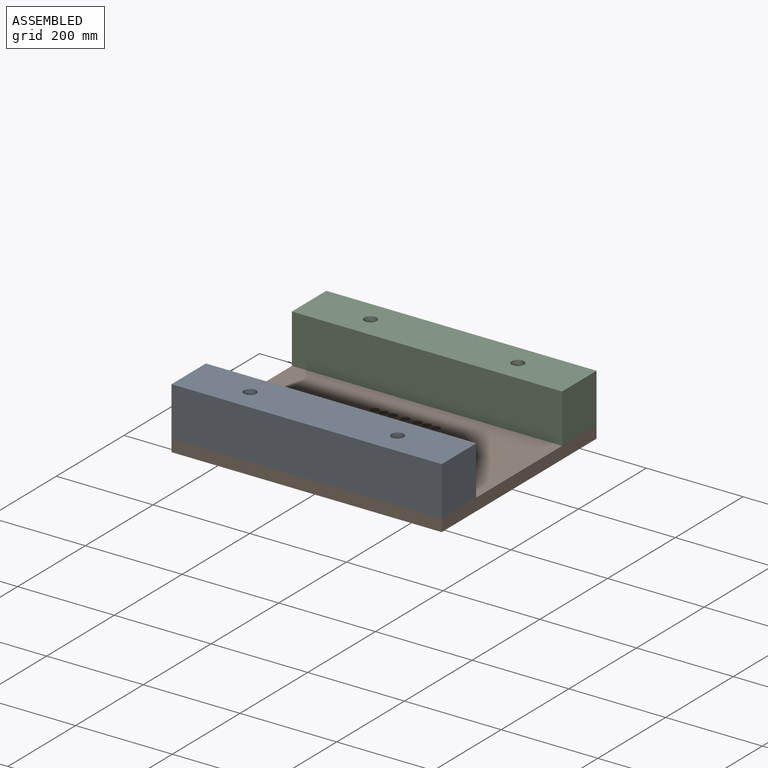
[diagram: assembled view]
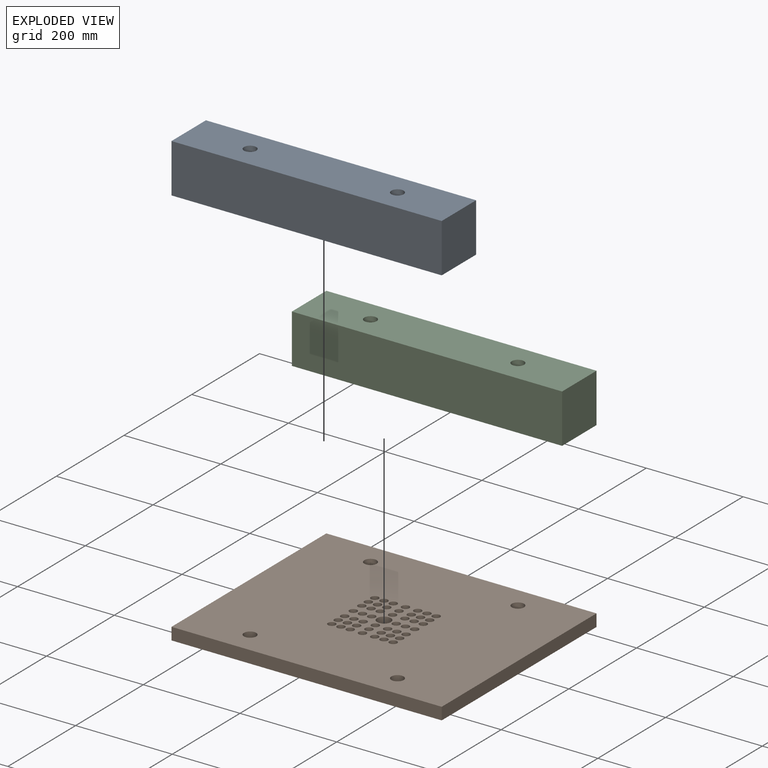
[diagram: exploded view]
GUIDED TOUR — MATED ASSEMBLY (Onshape document a8e37d6f4fe03221f33d71a7, AutoMate assembly a8e37d6f4fe03221f33d71a7_795fa14e1879638ab82243c3_b719b1e57178a6c754d3c16a_default)

This assembly has 3 components, labeled P0..P2 below (a component is one placed occurrence of a part; the same part can appear more than once), held together by 2 mates. A mate is a constraint between two components; its type names the relative motion it leaves free:
  PLANAR — leaves sliding in the plane through the listed point (normal = the listed direction) and rotation about that normal free.
Axis/direction vectors are unit vectors and 'through' points are millimeter coordinates, both in the assembly's world frame.

MATES
  1. PLANAR "Planar 2": P0 <-> P1, direction (0.000, 0.000, -1.000) through (30.35, -145.01, -91.39) mm
  2. PLANAR "Planar 1": P2 <-> P1, direction (0.000, 0.000, -1.000) through (30.35, 159.79, -91.39) mm

ASSEMBLY ORDER
  1. P2 — the base component [order verified]
  2. P0 [order verified]
  3. P1 [order verified]
Order-tag legend:
  [order verified] — this step's position reverses a verified removal order: the component was checked to insert without passing through the ones already placed.

Of the 3 components, 3 carry the full construction recipe — the FeatureScript program that regenerates the part's solid from scratch; the rest are supplied as boundary geometry only.
Each toured component is shown spotlighted twice — in the assembled view, then in the exploded view, where a leader line traces a displaced component back to its assembled socket (saturated green if recipe-attached, orange if geometry-only; every other component desaturated gray) — followed by its recipe or geometry summary and the mates that hold it.
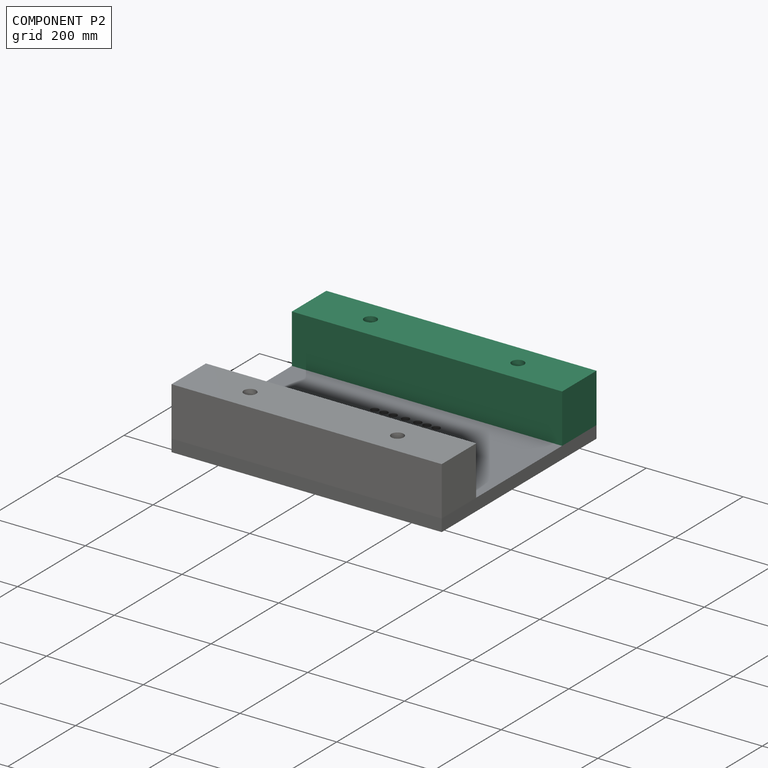
[diagram: component P2 — assembled]
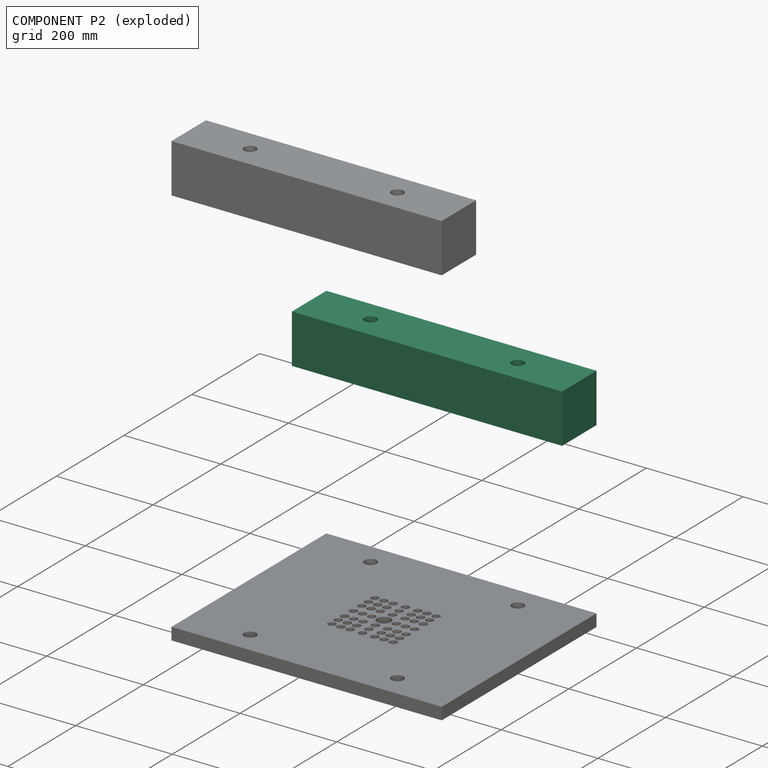
[diagram: component P2 — exploded]
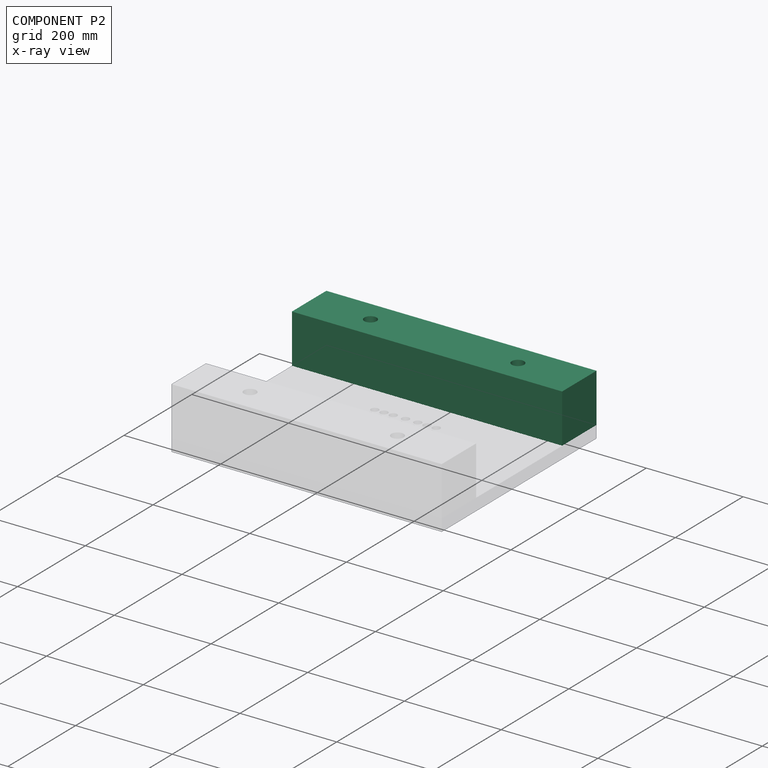
[diagram: component P2 — x-ray view]
COMPONENT P2 — same part as P0 (CADFS 00120802); its construction recipe is shown at P0.
Held by: PLANAR mate "Planar 1" to P1.
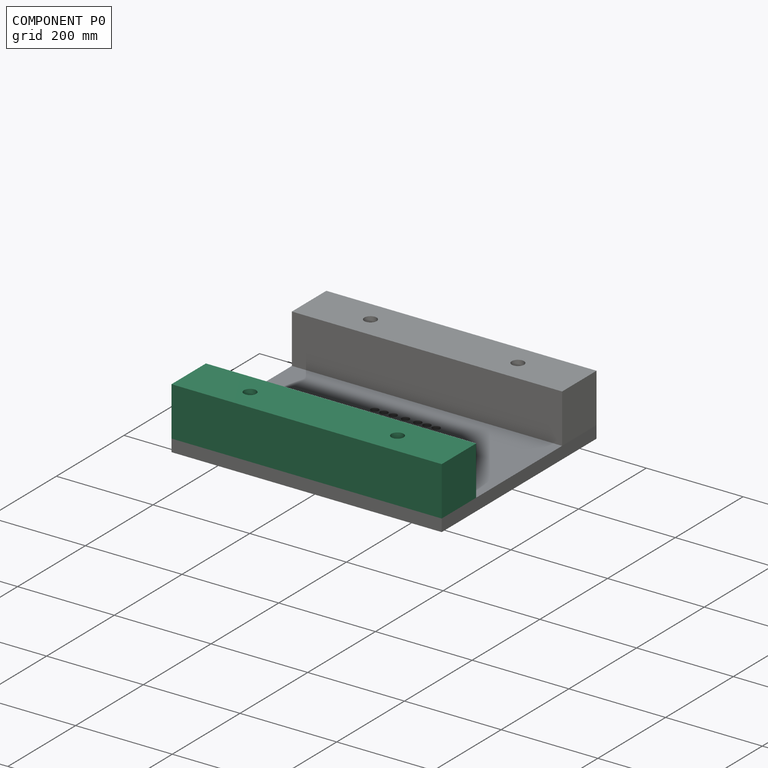
[diagram: component P0 — assembled]
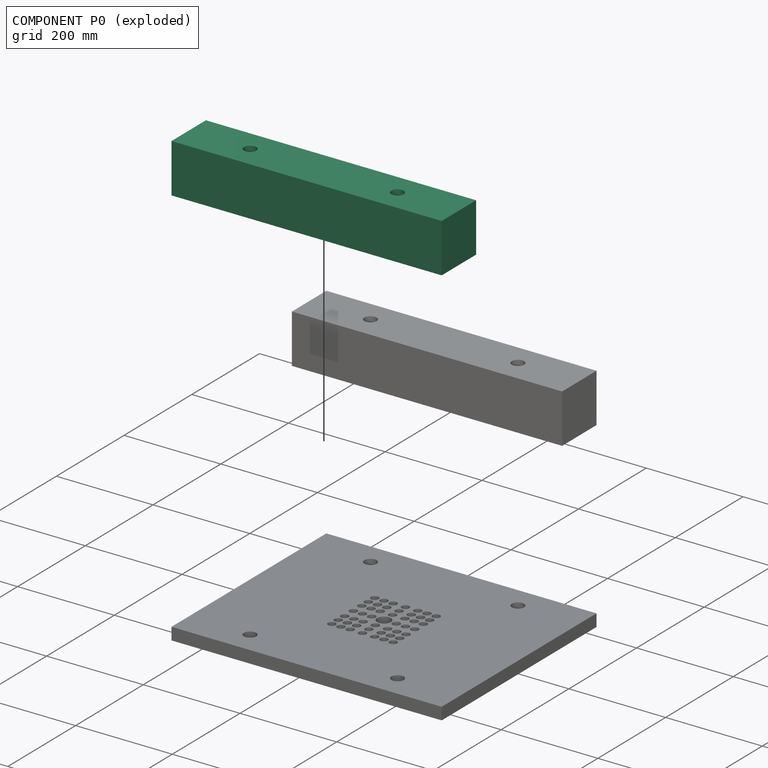
[diagram: component P0 — exploded]
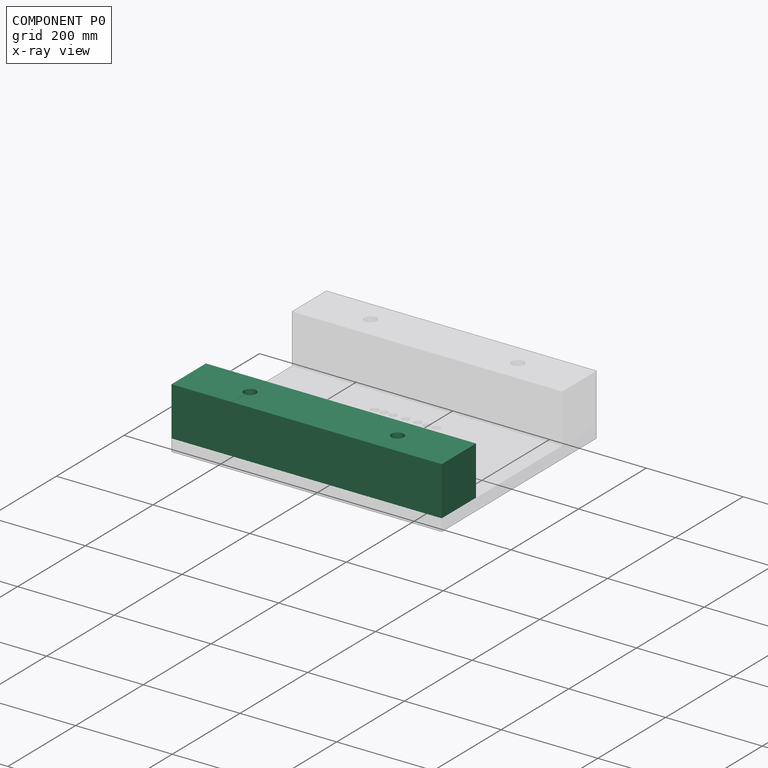
[diagram: component P0 — x-ray view]
COMPONENT P0 — recipe-attached (CADFS 00120802, mesh-verified: the recipe's output STEP matches this component's geometry to below the mesh-comparison resolution (tessellation chordal tolerance ~0.865 mm)).
Held by: PLANAR mate "Planar 2" to P1.
Construction recipe (FeatureScript — the CAD program that rebuilds this solid; sketch coordinates are in the units given by the * unit suffixes, e.g. mm):

FeatureScript 1511;
import(path : "onshape/std/geometry.fs", version : "1511.0");
import(path : "onshape/std/common.fs", version : "1511.0");
const mm = millimeter;
const VERTEX = EntityType.VERTEX;
const EDGE = EntityType.EDGE;
const FACE = EntityType.FACE;
const BODY = EntityType.BODY;
function v(x, y){return vector(x, y);}
function OD(order){return orderDisambiguation(order);}
function OSD(set){return originalSetDisambiguation(set);}
function TD(topology){return topologyDisambiguation(topology);}
function TDD(query){return trueDependencyDisambiguation(query);}
function sQuery(a, b, c) {return sketchEntityQuery(a, b, c);}

annotation { "Feature Type Name" : "Feature", "Feature Type Description" : "" }
export const myFeature = defineFeature(function(context is Context, id is Id, definition is map)
    precondition{}
    {
        {
            var Q0;
            Q0=qCreatedBy(makeId("Top.planeOp"),FACE);
            var sketch = newSketch(context, id + "F0", { "sketchPlane" : qUnion([Q0])});
            skLineSegment(sketch, "E0.bottom", {"start": v(0, 0) * mm, "end": v(558.8, 0) * mm});
            skLineSegment(sketch, "E0.top", {"start": v(0, 101.6) * mm, "end": v(558.8, 101.6) * mm});
            skLineSegment(sketch, "E0.left", {"start": v(0, 0) * mm, "end": v(0, 101.6) * mm});
            skLineSegment(sketch, "E0.right", {"start": v(558.8, 0) * mm, "end": v(558.8, 101.6) * mm});
            skSolve(sketch);
        }
        {
            var Q0;
            Q0 = qSketchRegion(id + "F0", true);
            extrude(context, id + "F1", {"entities" : qUnion([Q0]), "oppositeDirection" : true, "depth" : 101.6 * mm});
        }
        {
            var Q0;
            Q0=makeQuery(id+"F1.opExtrude","CAP_FACE",FACE,{"disambiguationData":[OSD([sQuery(id+"F0.wireOp",EDGE,"E0.bottom"),sQuery(id+"F0.wireOp",EDGE,"E0.top"),sQuery(id+"F0.wireOp",EDGE,"E0.left"),sQuery(id+"F0.wireOp",EDGE,"E0.right")])],"isStart":true});
            var sketch = newSketch(context, id + "F2", { "sketchPlane" : qUnion([Q0])});
            skCircle(sketch, "E1", {"center": v(127, 50.8) * mm, "radius": 12.7 * mm});
            skCircle(sketch, "E2", {"center": v(431.8, 50.8) * mm, "radius": 12.7 * mm});
            skLineSegment(sketch, "E3", {"start": v(114.3, 50.8) * mm, "end": v(0, 50.8) * mm});
            skLineSegment(sketch, "E4", {"start": v(431.8, 50.8) * mm, "end": v(558.8, 50.8) * mm});
            skLineSegment(sketch, "E5", {"start": v(127, 63.5) * mm, "end": v(127, 101.6) * mm});
            skLineSegment(sketch, "E6", {"start": v(127, 38.1) * mm, "end": v(127, 0) * mm});
            skSolve(sketch);
        }
        {
            var Q0;
            Q0 = qSketchRegion(id + "F2", true);
            extrude(context, id + "F3", {"entities" : qUnion([Q0]), "operationType" : NewBodyOperationType.REMOVE, "endBound" : BoundingType.THROUGH_ALL, "oppositeDirection" : true, "depth" : 25.4 * mm});
        }
    });
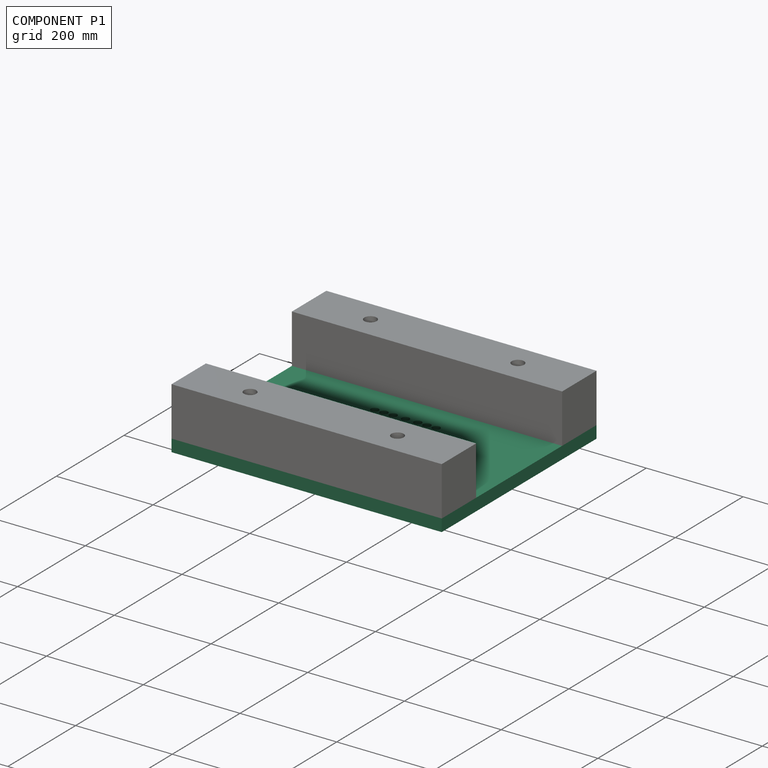
[diagram: component P1 — assembled]
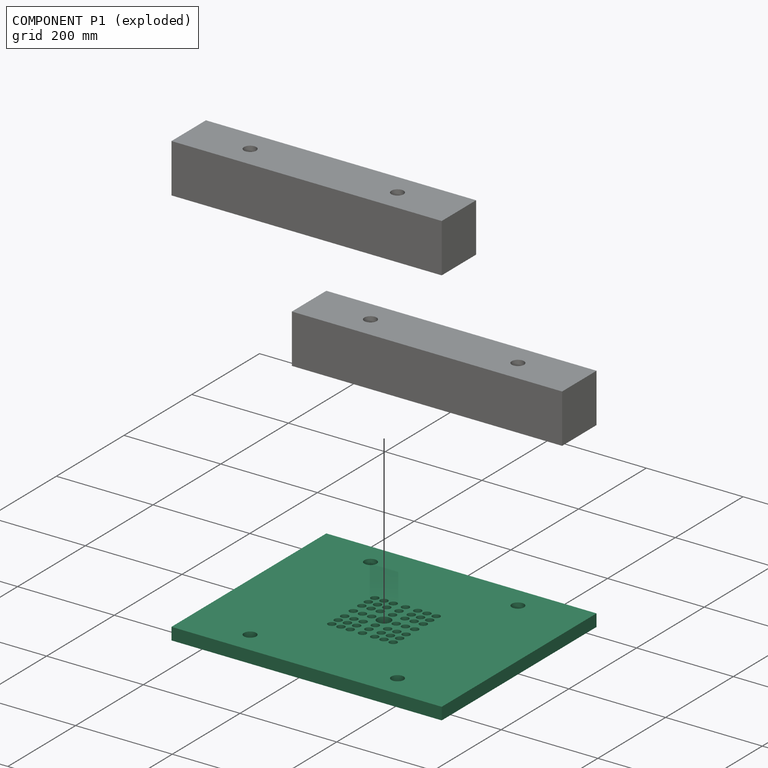
[diagram: component P1 — exploded]
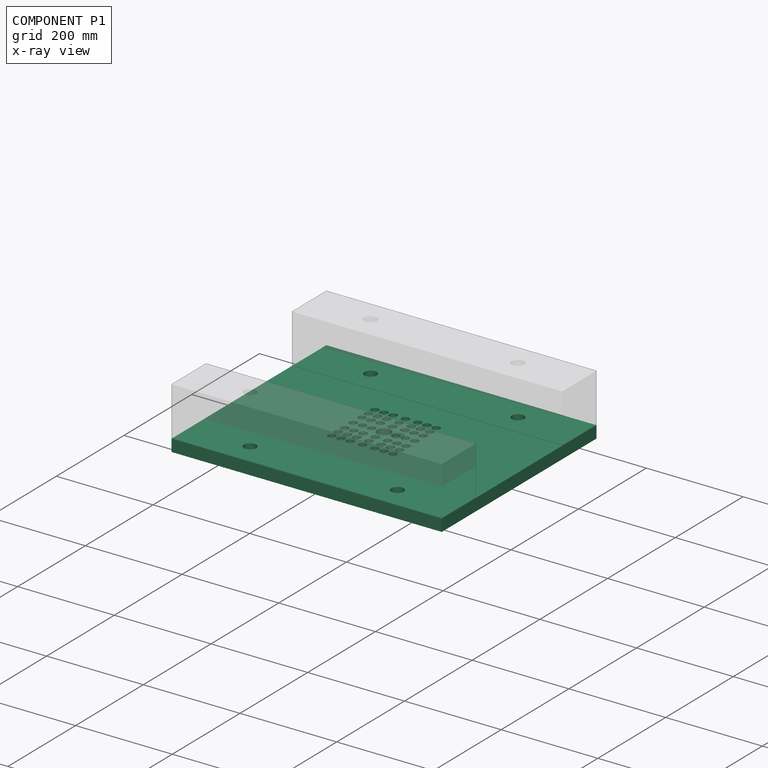
[diagram: component P1 — x-ray view]
COMPONENT P1 — recipe-attached (CADFS 00120801, mesh-verified: the recipe's output STEP matches this component's geometry to below the mesh-comparison resolution (tessellation chordal tolerance ~1.08 mm)).
Held by: PLANAR mate "Planar 2" to P0; PLANAR mate "Planar 1" to P2.
Construction recipe (FeatureScript — the CAD program that rebuilds this solid; sketch coordinates are in the units given by the * unit suffixes, e.g. mm):

FeatureScript 1511;
import(path : "onshape/std/geometry.fs", version : "1511.0");
import(path : "onshape/std/common.fs", version : "1511.0");
const mm = millimeter;
const VERTEX = EntityType.VERTEX;
const EDGE = EntityType.EDGE;
const FACE = EntityType.FACE;
const BODY = EntityType.BODY;
function v(x, y){return vector(x, y);}
function OD(order){return orderDisambiguation(order);}
function OSD(set){return originalSetDisambiguation(set);}
function TD(topology){return topologyDisambiguation(topology);}
function TDD(query){return trueDependencyDisambiguation(query);}
function sQuery(a, b, c) {return sketchEntityQuery(a, b, c);}

annotation { "Feature Type Name" : "Feature", "Feature Type Description" : "" }
export const myFeature = defineFeature(function(context is Context, id is Id, definition is map)
    precondition{}
    {
        {
            var Q0;
            Q0=qCreatedBy(makeId("Top.planeOp"),FACE);
            var sketch = newSketch(context, id + "F0", { "sketchPlane" : qUnion([Q0])});
            skLineSegment(sketch, "E0.bottom", {"start": v(279.4, -228.6) * mm, "end": v(-279.4, -228.6) * mm});
            skLineSegment(sketch, "E0.top", {"start": v(279.4, 228.6) * mm, "end": v(-279.4, 228.6) * mm});
            skLineSegment(sketch, "E0.left", {"start": v(279.4, -228.6) * mm, "end": v(279.4, 228.6) * mm});
            skLineSegment(sketch, "E0.right", {"start": v(-279.4, -228.6) * mm, "end": v(-279.4, 228.6) * mm});
            skPoint(sketch, "E0.middle", {"position": v(0, 0) * mm});
            skSolve(sketch);
        }
        {
            var Q0;
            Q0 = qSketchRegion(id + "F0", true);
            extrude(context, id + "F1", {"entities" : qUnion([Q0]), "oppositeDirection" : true, "depth" : 25.4 * mm});
        }
        {
            var Q0;
            Q0=makeQuery(id+"F1.opExtrude","CAP_FACE",FACE,{"disambiguationData":[OSD([sQuery(id+"F0.wireOp",EDGE,"E0.bottom"),sQuery(id+"F0.wireOp",EDGE,"E0.top"),sQuery(id+"F0.wireOp",EDGE,"E0.left"),sQuery(id+"F0.wireOp",EDGE,"E0.right")])],"isStart":true});
            var sketch = newSketch(context, id + "F2", { "sketchPlane" : qUnion([Q0])});
            skCircle(sketch, "E1", {"center": v(-152.4, -177.8) * mm, "radius": 12.7 * mm});
            skCircle(sketch, "E2", {"center": v(152.4, -177.8) * mm, "radius": 12.7 * mm});
            skCircle(sketch, "E3", {"center": v(-152.4, 177.8) * mm, "radius": 12.7 * mm});
            skCircle(sketch, "E4", {"center": v(152.4, 177.8) * mm, "radius": 12.7 * mm});
            skLineSegment(sketch, "E5", {"start": v(-152.4, -177.8) * mm, "end": v(-279.4, -177.8) * mm});
            skLineSegment(sketch, "E6", {"start": v(152.4, -177.8) * mm, "end": v(279.4, -177.8) * mm});
            skSolve(sketch);
        }
        {
            var Q0;
            Q0 = qSketchRegion(id + "F2", true);
            extrude(context, id + "F3", {"entities" : qUnion([Q0]), "operationType" : NewBodyOperationType.REMOVE, "endBound" : BoundingType.THROUGH_ALL, "oppositeDirection" : true, "depth" : 25.4 * mm});
        }
        {
            var Q0;
            Q0=makeQuery(id+"F1.opExtrude","CAP_FACE",FACE,{"disambiguationData":[OSD([sQuery(id+"F0.wireOp",EDGE,"E0.bottom"),sQuery(id+"F0.wireOp",EDGE,"E0.top"),sQuery(id+"F0.wireOp",EDGE,"E0.left"),sQuery(id+"F0.wireOp",EDGE,"E0.right")])],"isStart":true});
            var sketch = newSketch(context, id + "F4", { "sketchPlane" : qUnion([Q0])});
            skCircle(sketch, "E7", {"center": v(25.4, 63.5) * mm, "radius": 7.94 * mm});
            skCircle(sketch, "E8", {"center": v(25.4, 44.45) * mm, "radius": 7.94 * mm});
            skCircle(sketch, "E9", {"center": v(25.4, 25.4) * mm, "radius": 7.94 * mm});
            skCircle(sketch, "E10", {"center": v(44.45, 63.5) * mm, "radius": 7.94 * mm});
            skCircle(sketch, "E11", {"center": v(63.5, 63.5) * mm, "radius": 7.94 * mm});
            skCircle(sketch, "E12", {"center": v(44.45, 44.45) * mm, "radius": 7.94 * mm});
            skCircle(sketch, "E13", {"center": v(63.5, 44.45) * mm, "radius": 7.94 * mm});
            skCircle(sketch, "E14", {"center": v(44.45, 25.4) * mm, "radius": 7.94 * mm});
            skCircle(sketch, "E15", {"center": v(63.5, 25.4) * mm, "radius": 7.94 * mm});
            skCircle(sketch, "E16", {"center": v(0, 0) * mm, "radius": 14.29 * mm});
            skCircle(sketch, "E17", {"center": v(25.4, 0) * mm, "radius": 7.94 * mm});
            skCircle(sketch, "E18", {"center": v(44.45, 0) * mm, "radius": 7.94 * mm});
            skCircle(sketch, "E19", {"center": v(63.5, 0) * mm, "radius": 7.94 * mm});
            skCircle(sketch, "E20", {"center": v(0, 25.4) * mm, "radius": 7.94 * mm});
            skCircle(sketch, "E21", {"center": v(0, 44.45) * mm, "radius": 7.94 * mm});
            skCircle(sketch, "E22", {"center": v(0, 63.5) * mm, "radius": 7.94 * mm});
            skLineSegment(sketch, "E23", {"start": v(0, 63.5) * mm, "end": v(0, 25.4) * mm});
            skLineSegment(sketch, "E24", {"start": v(25.4, 0) * mm, "end": v(63.5, 0) * mm});
            skCircle(sketch, "E25.MirrorC", {"center": v(-25.4, 44.45) * mm, "radius": 7.94 * mm});
            skCircle(sketch, "E26.MirrorC", {"center": v(-25.4, 63.5) * mm, "radius": 7.94 * mm});
            skCircle(sketch, "E27.MirrorC", {"center": v(-44.45, 63.5) * mm, "radius": 7.94 * mm});
            skCircle(sketch, "E28.MirrorC", {"center": v(-63.5, 63.5) * mm, "radius": 7.94 * mm});
            skCircle(sketch, "E29.MirrorC", {"center": v(-63.5, 44.45) * mm, "radius": 7.94 * mm});
            skCircle(sketch, "E30.MirrorC", {"center": v(-63.5, 25.4) * mm, "radius": 7.94 * mm});
            skCircle(sketch, "E31.MirrorC", {"center": v(-44.45, 25.4) * mm, "radius": 7.94 * mm});
            skCircle(sketch, "E32.MirrorC", {"center": v(-25.4, 25.4) * mm, "radius": 7.94 * mm});
            skCircle(sketch, "E33.MirrorC", {"center": v(-44.45, 44.45) * mm, "radius": 7.94 * mm});
            skLineSegment(sketch, "E34.MirrorCS", {"start": v(0, -63.5) * mm, "end": v(0, -25.4) * mm});
            skCircle(sketch, "E35.MirrorC", {"center": v(-25.4, -25.4) * mm, "radius": 7.94 * mm});
            skCircle(sketch, "E36.MirrorC", {"center": v(-63.5, -44.45) * mm, "radius": 7.94 * mm});
            skCircle(sketch, "E37.MirrorC", {"center": v(-44.45, -63.5) * mm, "radius": 7.94 * mm});
            skCircle(sketch, "E38.MirrorC", {"center": v(-25.4, -63.5) * mm, "radius": 7.94 * mm});
            skCircle(sketch, "E39.MirrorC", {"center": v(-25.4, -44.45) * mm, "radius": 7.94 * mm});
            skCircle(sketch, "E40.MirrorC", {"center": v(-63.5, -63.5) * mm, "radius": 7.94 * mm});
            skCircle(sketch, "E41.MirrorC", {"center": v(-44.45, -25.4) * mm, "radius": 7.94 * mm});
            skCircle(sketch, "E42.MirrorC", {"center": v(0, -25.4) * mm, "radius": 7.94 * mm});
            skCircle(sketch, "E43.MirrorC", {"center": v(0, -44.45) * mm, "radius": 7.94 * mm});
            skCircle(sketch, "E44.MirrorC", {"center": v(0, -63.5) * mm, "radius": 7.94 * mm});
            skCircle(sketch, "E45.MirrorC", {"center": v(25.4, -63.5) * mm, "radius": 7.94 * mm});
            skCircle(sketch, "E46.MirrorC", {"center": v(25.4, -44.45) * mm, "radius": 7.94 * mm});
            skCircle(sketch, "E47.MirrorC", {"center": v(-63.5, -25.4) * mm, "radius": 7.94 * mm});
            skCircle(sketch, "E48.MirrorC", {"center": v(25.4, -25.4) * mm, "radius": 7.94 * mm});
            skCircle(sketch, "E49.MirrorC", {"center": v(44.45, -63.5) * mm, "radius": 7.94 * mm});
            skCircle(sketch, "E50.MirrorC", {"center": v(63.5, -63.5) * mm, "radius": 7.94 * mm});
            skCircle(sketch, "E51.MirrorC", {"center": v(44.45, -44.45) * mm, "radius": 7.94 * mm});
            skCircle(sketch, "E52.MirrorC", {"center": v(63.5, -44.45) * mm, "radius": 7.94 * mm});
            skCircle(sketch, "E53.MirrorC", {"center": v(-44.45, -44.45) * mm, "radius": 7.94 * mm});
            skCircle(sketch, "E54.MirrorC", {"center": v(44.45, -25.4) * mm, "radius": 7.94 * mm});
            skCircle(sketch, "E55.MirrorC", {"center": v(63.5, -25.4) * mm, "radius": 7.94 * mm});
            skCircle(sketch, "E56.MirrorC", {"center": v(-25.4, 0) * mm, "radius": 7.94 * mm});
            skCircle(sketch, "E57.MirrorC", {"center": v(-44.45, 0) * mm, "radius": 7.94 * mm});
            skCircle(sketch, "E58.MirrorC", {"center": v(-63.5, 0) * mm, "radius": 7.94 * mm});
            skSolve(sketch);
        }
        {
            var Q0;
            Q0 = qSketchRegion(id + "F4", true);
            extrude(context, id + "F5", {"entities" : qUnion([Q0]), "operationType" : NewBodyOperationType.REMOVE, "endBound" : BoundingType.THROUGH_ALL, "oppositeDirection" : true, "depth" : 25.4 * mm});
        }
        {
            var Q0;
            Q0=makeQuery(id+"F1.opExtrude","CAP_FACE",FACE,{"disambiguationData":[OSD([sQuery(id+"F0.wireOp",EDGE,"E0.bottom"),sQuery(id+"F0.wireOp",EDGE,"E0.top"),sQuery(id+"F0.wireOp",EDGE,"E0.left"),sQuery(id+"F0.wireOp",EDGE,"E0.right")])],"isStart":true});
            cPlane(context, id + "F6", {"entities" : qUnion([Q0]), "cplaneType" : CPlaneType.OFFSET, "offset" : 12.7 * mm, "oppositeDirection" : true, "width" : 152.4 * mm, "height" : 152.4 * mm});
        }
        {
            var Q0;
            Q0=qCreatedBy(id+"F6.planeOp",FACE);
            var sketch = newSketch(context, id + "F7", { "sketchPlane" : qUnion([Q0])});
            skCircle(sketch, "E59.0", {"center": v(63.5, 63.5) * mm, "radius": 7.94 * mm});
            skCircle(sketch, "E59.1", {"center": v(63.5, 44.45) * mm, "radius": 7.94 * mm});
            skCircle(sketch, "E59.2", {"center": v(44.45, 44.45) * mm, "radius": 7.94 * mm});
            skCircle(sketch, "E59.3", {"center": v(44.45, 25.4) * mm, "radius": 7.94 * mm});
            skCircle(sketch, "E59.4", {"center": v(44.45, 63.5) * mm, "radius": 7.94 * mm});
            skCircle(sketch, "E59.5", {"center": v(25.4, 63.5) * mm, "radius": 7.94 * mm});
            skCircle(sketch, "E59.6", {"center": v(25.4, 44.45) * mm, "radius": 7.94 * mm});
            skCircle(sketch, "E59.7", {"center": v(25.4, 25.4) * mm, "radius": 7.94 * mm});
            skCircle(sketch, "E59.8", {"center": v(63.5, 25.4) * mm, "radius": 7.94 * mm});
            skCircle(sketch, "E59.9", {"center": v(63.5, 0) * mm, "radius": 7.94 * mm});
            skCircle(sketch, "E59.10", {"center": v(44.45, 0) * mm, "radius": 7.94 * mm});
            skCircle(sketch, "E59.11", {"center": v(25.4, 0) * mm, "radius": 7.94 * mm});
            skCircle(sketch, "E59.12", {"center": v(25.4, -25.4) * mm, "radius": 7.94 * mm});
            skCircle(sketch, "E59.13", {"center": v(44.45, -25.4) * mm, "radius": 7.94 * mm});
            skCircle(sketch, "E59.14", {"center": v(63.5, -25.4) * mm, "radius": 7.94 * mm});
            skCircle(sketch, "E59.15", {"center": v(63.5, -44.45) * mm, "radius": 7.94 * mm});
            skCircle(sketch, "E59.16", {"center": v(44.45, -44.45) * mm, "radius": 7.94 * mm});
            skCircle(sketch, "E59.17", {"center": v(25.4, -44.45) * mm, "radius": 7.94 * mm});
            skCircle(sketch, "E59.18", {"center": v(25.4, -63.5) * mm, "radius": 7.94 * mm});
            skCircle(sketch, "E59.19", {"center": v(44.45, -63.5) * mm, "radius": 7.94 * mm});
            skCircle(sketch, "E59.20", {"center": v(63.5, -63.5) * mm, "radius": 7.94 * mm});
            skCircle(sketch, "E59.21", {"center": v(0, -63.5) * mm, "radius": 7.94 * mm});
            skCircle(sketch, "E59.22", {"center": v(0, -44.45) * mm, "radius": 7.94 * mm});
            skCircle(sketch, "E59.23", {"center": v(0, -25.4) * mm, "radius": 7.94 * mm});
            skCircle(sketch, "E59.24", {"center": v(0, 25.4) * mm, "radius": 7.94 * mm});
            skCircle(sketch, "E59.25", {"center": v(0, 44.45) * mm, "radius": 7.94 * mm});
            skCircle(sketch, "E59.26", {"center": v(0, 63.5) * mm, "radius": 7.94 * mm});
            skCircle(sketch, "E59.27", {"center": v(-25.4, 63.5) * mm, "radius": 7.94 * mm});
            skCircle(sketch, "E59.28", {"center": v(-25.4, 44.45) * mm, "radius": 7.94 * mm});
            skCircle(sketch, "E59.29", {"center": v(-25.4, 25.4) * mm, "radius": 7.94 * mm});
            skCircle(sketch, "E59.30", {"center": v(-25.4, 0) * mm, "radius": 7.94 * mm});
            skCircle(sketch, "E59.31", {"center": v(-25.4, -25.4) * mm, "radius": 7.94 * mm});
            skCircle(sketch, "E59.32", {"center": v(-25.4, -44.45) * mm, "radius": 7.94 * mm});
            skCircle(sketch, "E59.33", {"center": v(-25.4, -63.5) * mm, "radius": 7.94 * mm});
            skCircle(sketch, "E59.34", {"center": v(-44.45, -63.5) * mm, "radius": 7.94 * mm});
            skCircle(sketch, "E59.35", {"center": v(-44.45, -44.45) * mm, "radius": 7.94 * mm});
            skCircle(sketch, "E59.36", {"center": v(-44.45, -25.4) * mm, "radius": 7.94 * mm});
            skCircle(sketch, "E59.37", {"center": v(-44.45, 0) * mm, "radius": 7.94 * mm});
            skCircle(sketch, "E59.38", {"center": v(-44.45, 25.4) * mm, "radius": 7.94 * mm});
            skCircle(sketch, "E59.39", {"center": v(-44.45, 44.45) * mm, "radius": 7.94 * mm});
            skCircle(sketch, "E59.40", {"center": v(-44.45, 63.5) * mm, "radius": 7.94 * mm});
            skCircle(sketch, "E59.41", {"center": v(-63.5, 63.5) * mm, "radius": 7.94 * mm});
            skCircle(sketch, "E59.42", {"center": v(-63.5, 44.45) * mm, "radius": 7.94 * mm});
            skCircle(sketch, "E59.43", {"center": v(-63.5, 25.4) * mm, "radius": 7.94 * mm});
            skCircle(sketch, "E59.44", {"center": v(-63.5, 0) * mm, "radius": 7.94 * mm});
            skCircle(sketch, "E59.45", {"center": v(-63.5, -25.4) * mm, "radius": 7.94 * mm});
            skCircle(sketch, "E59.46", {"center": v(-63.5, -44.45) * mm, "radius": 7.94 * mm});
            skCircle(sketch, "E59.47", {"center": v(-63.5, -63.5) * mm, "radius": 7.94 * mm});
            skCircle(sketch, "E60", {"center": v(63.5, 63.5) * mm, "radius": 4.76 * mm});
            skCircle(sketch, "E61", {"center": v(63.5, 44.45) * mm, "radius": 4.76 * mm});
            skCircle(sketch, "E62", {"center": v(63.5, 25.4) * mm, "radius": 4.76 * mm});
            skCircle(sketch, "E63", {"center": v(44.45, 25.4) * mm, "radius": 4.76 * mm});
            skCircle(sketch, "E64", {"center": v(44.45, 63.5) * mm, "radius": 4.76 * mm});
            skCircle(sketch, "E65", {"center": v(44.45, 44.45) * mm, "radius": 4.76 * mm});
            skCircle(sketch, "E66", {"center": v(25.4, 63.5) * mm, "radius": 4.76 * mm});
            skCircle(sketch, "E67", {"center": v(25.4, 44.45) * mm, "radius": 4.76 * mm});
            skCircle(sketch, "E68", {"center": v(25.4, 25.4) * mm, "radius": 4.76 * mm});
            skCircle(sketch, "E69", {"center": v(0, 63.5) * mm, "radius": 4.76 * mm});
            skCircle(sketch, "E70", {"center": v(0, 44.45) * mm, "radius": 4.76 * mm});
            skCircle(sketch, "E71", {"center": v(0, 25.4) * mm, "radius": 4.76 * mm});
            skCircle(sketch, "E72", {"center": v(63.5, 0) * mm, "radius": 4.76 * mm});
            skCircle(sketch, "E73", {"center": v(44.45, 0) * mm, "radius": 4.76 * mm});
            skCircle(sketch, "E74", {"center": v(25.4, 0) * mm, "radius": 4.76 * mm});
            skLineSegment(sketch, "E75", {"start": v(0, 63.5) * mm, "end": v(0, 25.4) * mm});
            skLineSegment(sketch, "E76", {"start": v(25.4, 0) * mm, "end": v(63.5, 0) * mm});
            skCircle(sketch, "E77.MirrorC", {"center": v(-25.4, 63.5) * mm, "radius": 4.76 * mm});
            skCircle(sketch, "E78.MirrorC", {"center": v(-44.45, 63.5) * mm, "radius": 4.76 * mm});
            skCircle(sketch, "E79.MirrorC", {"center": v(-63.5, 63.5) * mm, "radius": 4.76 * mm});
            skCircle(sketch, "E80.MirrorC", {"center": v(-63.5, 44.45) * mm, "radius": 4.76 * mm});
            skCircle(sketch, "E81.MirrorC", {"center": v(-44.45, 44.45) * mm, "radius": 4.76 * mm});
            skCircle(sketch, "E82.MirrorC", {"center": v(-25.4, 44.45) * mm, "radius": 4.76 * mm});
            skCircle(sketch, "E83.MirrorC", {"center": v(-25.4, 25.4) * mm, "radius": 4.76 * mm});
            skCircle(sketch, "E84.MirrorC", {"center": v(-44.45, 25.4) * mm, "radius": 4.76 * mm});
            skCircle(sketch, "E85.MirrorC", {"center": v(-63.5, 25.4) * mm, "radius": 4.76 * mm});
            skCircle(sketch, "E86.MirrorC", {"center": v(63.5, -25.4) * mm, "radius": 4.76 * mm});
            skCircle(sketch, "E87.MirrorC", {"center": v(63.5, -44.45) * mm, "radius": 4.76 * mm});
            skCircle(sketch, "E88.MirrorC", {"center": v(63.5, -63.5) * mm, "radius": 4.76 * mm});
            skCircle(sketch, "E89.MirrorC", {"center": v(44.45, -63.5) * mm, "radius": 4.76 * mm});
            skCircle(sketch, "E90.MirrorC", {"center": v(44.45, -44.45) * mm, "radius": 4.76 * mm});
            skCircle(sketch, "E91.MirrorC", {"center": v(44.45, -25.4) * mm, "radius": 4.76 * mm});
            skCircle(sketch, "E92.MirrorC", {"center": v(25.4, -25.4) * mm, "radius": 4.76 * mm});
            skCircle(sketch, "E93.MirrorC", {"center": v(25.4, -44.45) * mm, "radius": 4.76 * mm});
            skCircle(sketch, "E94.MirrorC", {"center": v(25.4, -63.5) * mm, "radius": 4.76 * mm});
            skCircle(sketch, "E95.MirrorC", {"center": v(0, -63.5) * mm, "radius": 4.76 * mm});
            skCircle(sketch, "E96.MirrorC", {"center": v(0, -44.45) * mm, "radius": 4.76 * mm});
            skCircle(sketch, "E97.MirrorC", {"center": v(0, -25.4) * mm, "radius": 4.76 * mm});
            skCircle(sketch, "E98.MirrorC", {"center": v(-25.4, -25.4) * mm, "radius": 4.76 * mm});
            skCircle(sketch, "E99.MirrorC", {"center": v(-25.4, -44.45) * mm, "radius": 4.76 * mm});
            skCircle(sketch, "E100.MirrorC", {"center": v(-25.4, -63.5) * mm, "radius": 4.76 * mm});
            skCircle(sketch, "E101.MirrorC", {"center": v(-44.45, -63.5) * mm, "radius": 4.76 * mm});
            skCircle(sketch, "E102.MirrorC", {"center": v(-44.45, -44.45) * mm, "radius": 4.76 * mm});
            skCircle(sketch, "E103.MirrorC", {"center": v(-44.45, -25.4) * mm, "radius": 4.76 * mm});
            skCircle(sketch, "E104.MirrorC", {"center": v(-63.5, -25.4) * mm, "radius": 4.76 * mm});
            skCircle(sketch, "E105.MirrorC", {"center": v(-63.5, -44.45) * mm, "radius": 4.76 * mm});
            skCircle(sketch, "E106.MirrorC", {"center": v(-63.5, -63.5) * mm, "radius": 4.76 * mm});
            skCircle(sketch, "E107.MirrorC", {"center": v(-25.4, 0) * mm, "radius": 4.76 * mm});
            skCircle(sketch, "E108.MirrorC", {"center": v(-44.45, 0) * mm, "radius": 4.76 * mm});
            skCircle(sketch, "E109.MirrorC", {"center": v(-63.5, 0) * mm, "radius": 4.76 * mm});
            skSolve(sketch);
        }
        {
            var Q0;
            Q0 = qSketchRegion(id + "F7", true);
            extrude(context, id + "F8", {"entities" : qUnion([Q0]), "operationType" : NewBodyOperationType.ADD, "oppositeDirection" : true, "depth" : 12.7 * mm});
        }
    });
PROVENANCE & LICENSES
Assembly (occurrences, transforms, mates, per-part STEP geometry): AutoMate dataset, Zenodo record 7776208, CC0.
Construction recipes: CADFS (HuggingFace VladPyatov/CADFS, CC-BY-4.0, layered over the ABC dataset), FeatureScript reconstruction programs keyed by ABC model id.
Join: ABC meta listings map ABC model id -> Onshape documentId; within a shared document, parts are matched by geometric signature (bounding-box dims + volume at 0.1% relative tolerance, exact B-rep face/solid counts).
Verification: 3 of this assembly's 3 components carry a recipe attachment, and every attachment is mesh-verified: the CADFS STEP and the AutoMate member STEP were compared as meshes in their shared local frame (symmetric sampled-point-to-mesh distance); worst across the 3 attachments: below the mesh-comparison resolution (tessellation chordal tolerance ~1.08 mm) on a 722 mm part.
Renders: orthographic iso camera (az 35 / el 25); the floor grid conveys scale (grid pitch printed in each image; no ruler). In the exploded view each component is displaced by its stored offset vector: the offsets alone carry the explosion direction (mate normal/axis signs are not orientation cues and do not encode it), and separation distances are assigned per mate-chain, not proportionally to assembly-order depth.
